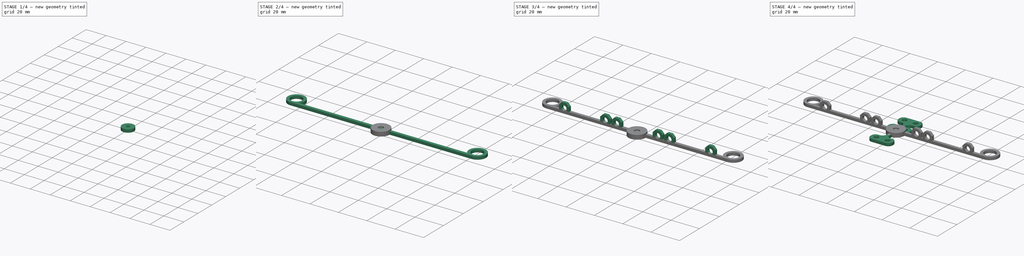
[diagram: build sequence overview — one tinted view per stage of 4, left to right]
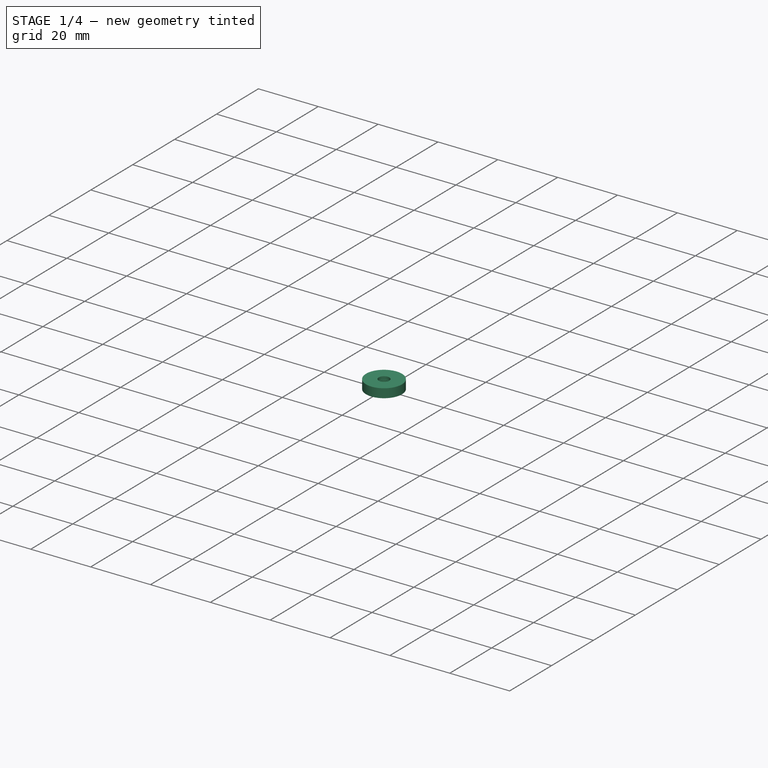
[diagram: stage 1 of 4 — iso view after this stage's code; geometry added in this stage tinted green]
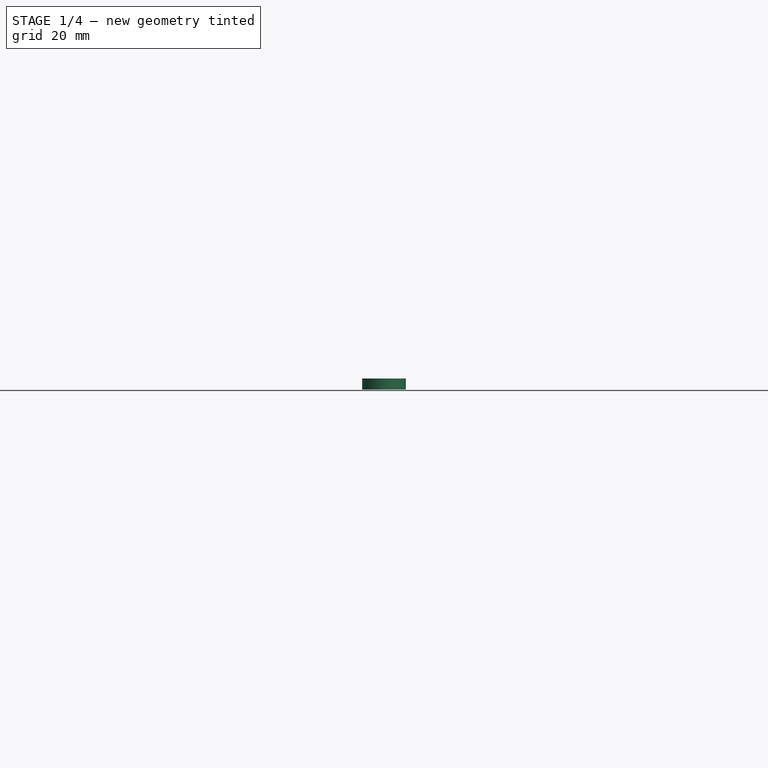
[diagram: stage 1 of 4 — front view after this stage's code; geometry added in this stage tinted green]
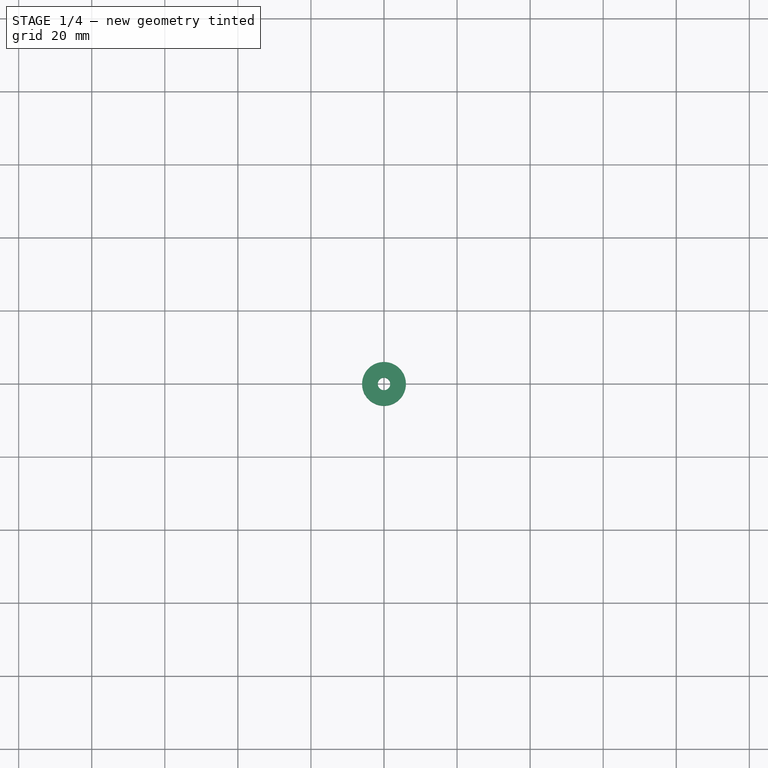
[diagram: stage 1 of 4 — top view after this stage's code; geometry added in this stage tinted green]
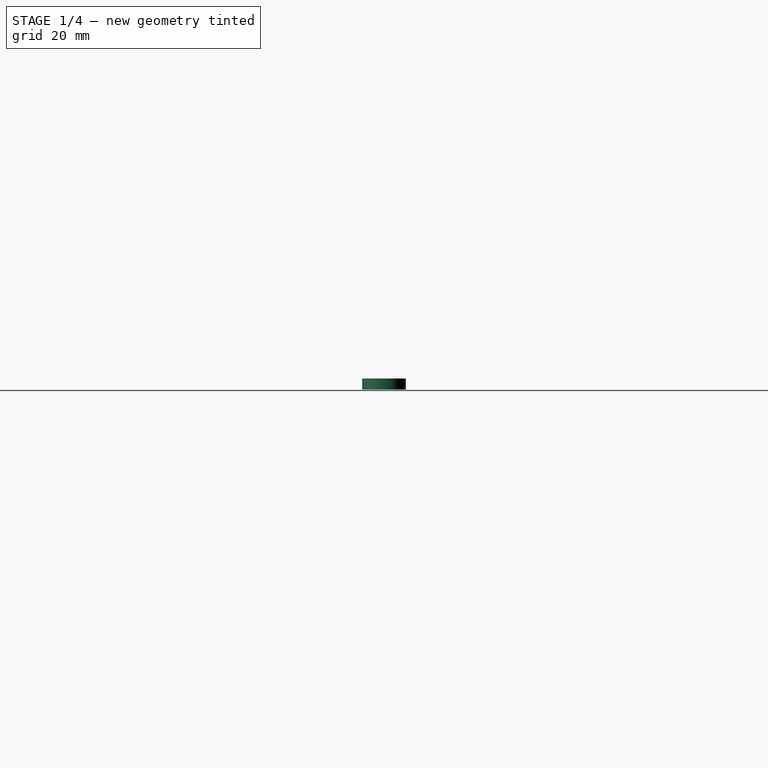
[diagram: stage 1 of 4 — right view after this stage's code; geometry added in this stage tinted green]
FCSTD DOCUMENT  (FreeCAD 1.1R38728 (Git))
Label: AuxPower1U Fan
License: All rights reserved
LicenseURL: https://en.wikipedia.org/wiki/All_rights_reserved
objects: Sketcher::SketchObject×8, PartDesign::Pad×6, PartDesign::Body×5, PartDesign::Pocket×2, PartDesign::Chamfer×1
note: 48 computed .brp shape members not serialized (recipe doc carries the construction recipe); baked Part::Feature solids carry a one-line shape summary decoded from their .brp

FEATURE [PartDesign::Body] Body003  label="BackBrace"
  AllowCompound = false
  Group = -> [Sketch006,Pad002,Sketch008,Pad003,Sketch009,Pocket,Chamfer]
  Origin = -> Origin003
  Placement = pos=(0,-20,0) rot=(0,0,1;0rad)
  Tip = -> Chamfer
FEATURE [Sketcher::SketchObject] Sketch010  label="BraceCapBossSketch"
  ArcFitTolerance = 1e-06
  AttachmentSupport = -> [XY_Plane004]
  FullyConstrained = true
  MakeInternals = false
  MapMode = 5
  sketch-geometry (2):
    g0: Circle CenterX=0 CenterY=0 CenterZ=0 NormalX=0 NormalY=0 NormalZ=1 AngleXU=0 Radius=6
    g1: Circle CenterX=0 CenterY=0 CenterZ=0 NormalX=0 NormalY=0 NormalZ=1 AngleXU=0 Radius=1.8
  constraints (4):
    c: Diameter(g0) = 12
    c: Coincident(g0,g-1)
    c: Diameter(g1) = 3.6
    c: Coincident(g1,g0)
FEATURE [PartDesign::Pad] Pad004  label="BraceCapBossPad"
  Direction = (0,0,1)
  Length = 3
  Length2 = 10
  Profile = -> Sketch010
  ReferenceAxis = -> Sketch010 [N_Axis]
  Refine = true
  Suppressed = false
  Type = 0
FEATURE [PartDesign::Body] Body004  label="BraceCap"
  AllowCompound = false
  Group = -> [Sketch010,Pad004,Sketch011,Pocket001]
  Origin = -> Origin004
  Placement = pos=(0,-30,0) rot=(0,0,1;0rad)
  Tip = -> Pocket001
FEATURE [Sketcher::SketchObject] Sketch012  label="SingleBraceSketch"
  ArcFitTolerance = 1e-06
  AttachmentSupport = -> [XY_Plane005]
  FullyConstrained = true
  MakeInternals = false
  MapMode = 5
  sketch-geometry (2):
    g0: Circle CenterX=0 CenterY=0 CenterZ=0 NormalX=0 NormalY=0 NormalZ=1 AngleXU=0 Radius=1.7
    g1: Circle CenterX=0 CenterY=0 CenterZ=0 NormalX=0 NormalY=0 NormalZ=1 AngleXU=0 Radius=3.5
  constraints (4):
    c: Diameter(g0) = 3.4
    c: Coincident(g0,g-1)
    c: Diameter(g1) = 7
    c: Coincident(g1,g0)
FEATURE [PartDesign::Pad] Pad005  label="SingleBracePad"
  Direction = (0,0,1)
  Length = 2
  Length2 = 10
  Profile = -> Sketch012
  ReferenceAxis = -> Sketch012 [N_Axis]
  Refine = true
  Suppressed = false
  Type = 0
FEATURE [PartDesign::Body] Body005  label="SingleBrace"
  AllowCompound = false
  Group = -> [Sketch012,Pad005]
  Origin = -> Origin005
  Placement = pos=(0,-50,0) rot=(0,0,1;0rad)
  Tip = -> Pad005
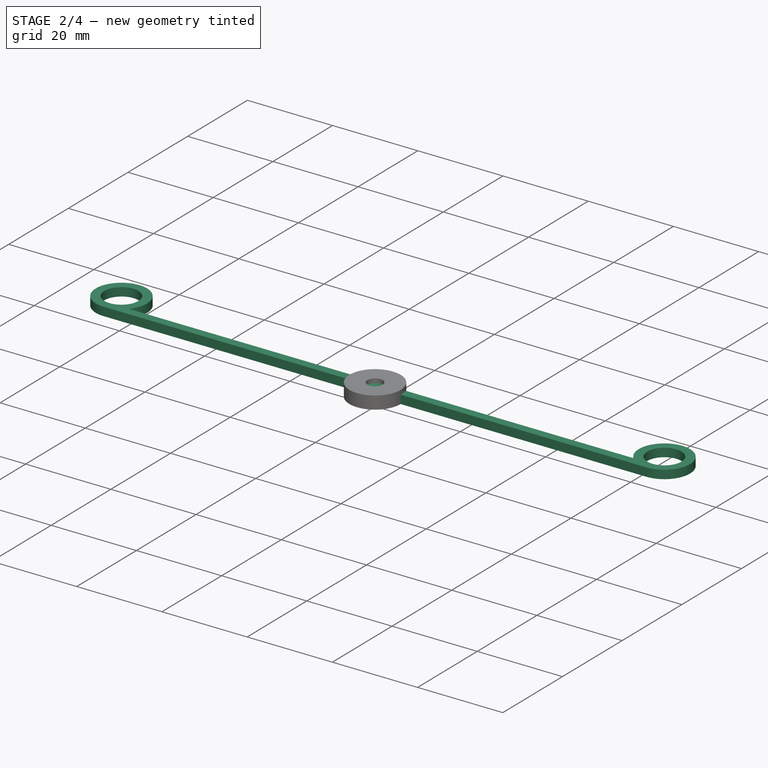
[diagram: stage 2 of 4 — iso view after this stage's code; geometry added in this stage tinted green]
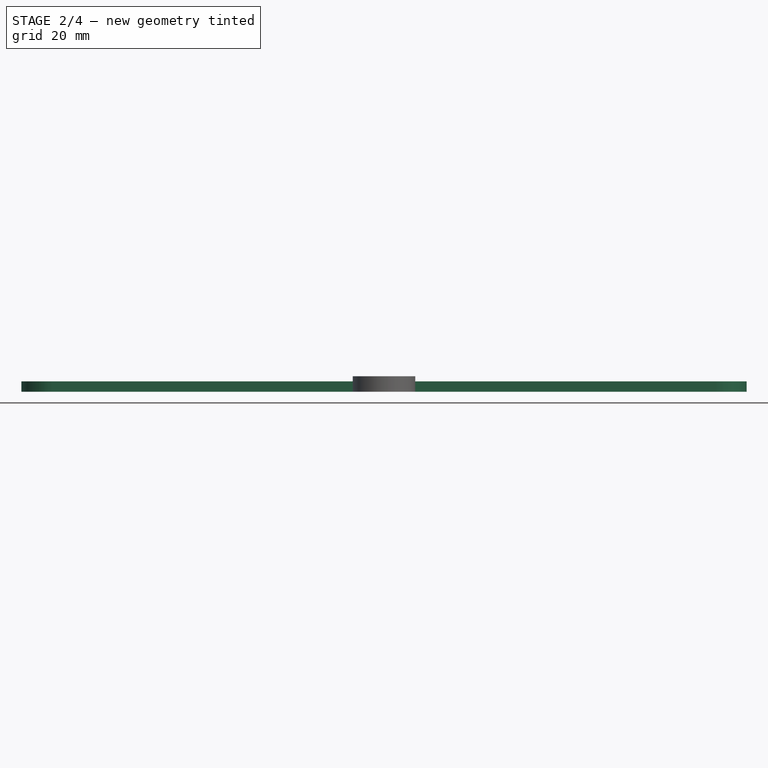
[diagram: stage 2 of 4 — front view after this stage's code; geometry added in this stage tinted green]
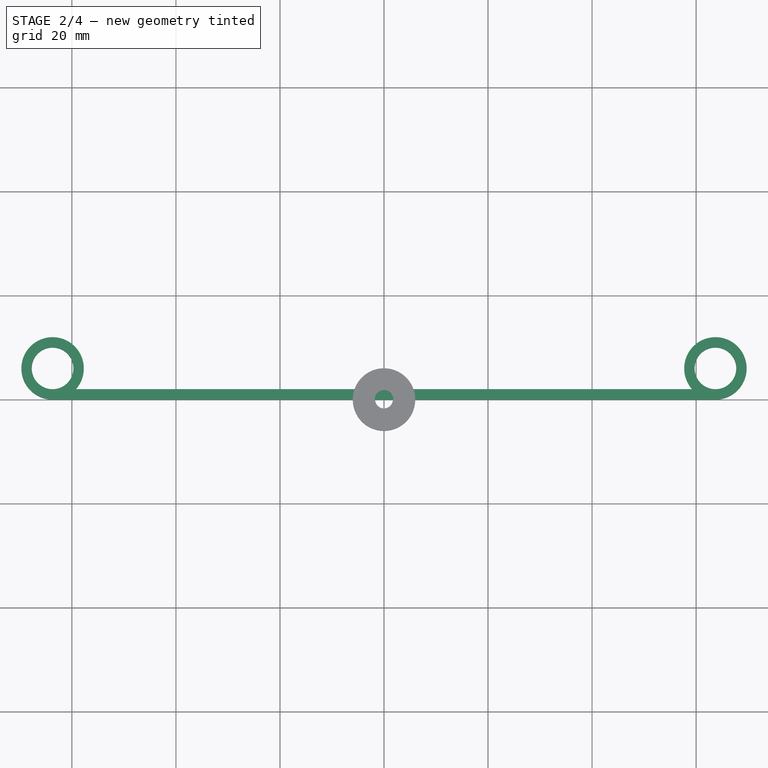
[diagram: stage 2 of 4 — top view after this stage's code; geometry added in this stage tinted green]
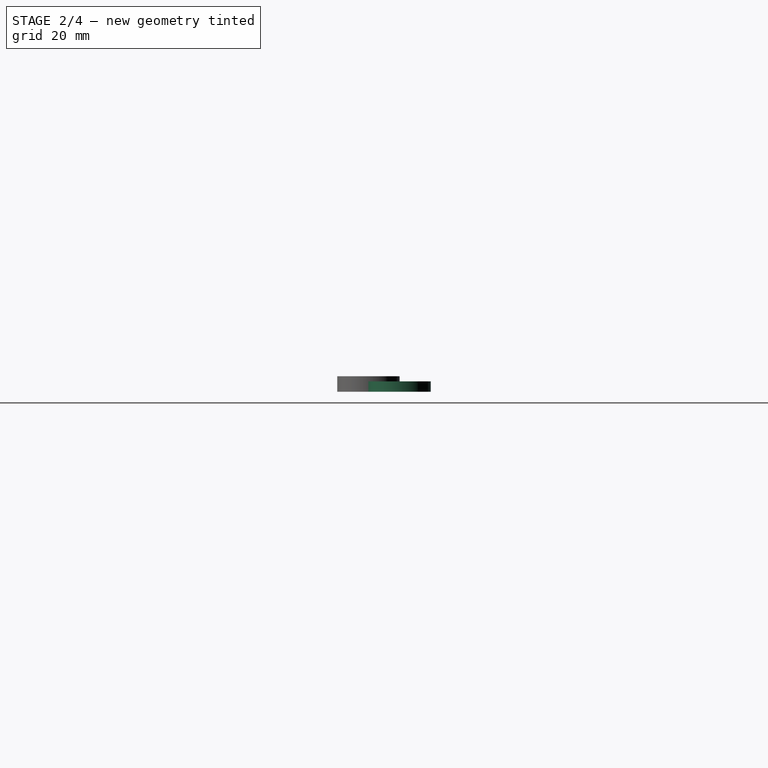
[diagram: stage 2 of 4 — right view after this stage's code; geometry added in this stage tinted green]
FEATURE [PartDesign::Body] Body001  label="ShortBrace"
  AllowCompound = false
  Group = -> [Sketch001,Pad001]
  Origin = -> Origin001
  Tip = -> Pad001
FEATURE [Sketcher::SketchObject] Sketch006  label="BackBraceBeamSketch"
  ArcFitTolerance = 1e-06
  AttachmentSupport = -> [XY_Plane003]
  FullyConstrained = true
  MakeInternals = false
  MapMode = 5
  sketch-geometry (9):
    g0: LineSegment [constr] StartX=0 StartY=0 StartZ=0 EndX=0 EndY=6 EndZ=0
    g1: LineSegment [constr] StartX=-63.7159 StartY=6 StartZ=0 EndX=-63.7159 EndY=0 EndZ=0
    g2: ArcOfCircle CenterX=-63.7159 CenterY=6 CenterZ=0 NormalX=0 NormalY=0 NormalZ=1 AngleXU=0 Radius=6 StartAngle=5.55346 EndAngle=10.9956
    g3: LineSegment [constr] StartX=63.7159 StartY=6 StartZ=0 EndX=63.7159 EndY=0 EndZ=0
    g4: ArcOfCircle CenterX=63.7159 CenterY=6 CenterZ=0 NormalX=0 NormalY=0 NormalZ=1 AngleXU=0 Radius=6 StartAngle=4.71239 EndAngle=10.1545
    g5: LineSegment StartX=-63.7159 StartY=0 StartZ=0 EndX=63.7159 EndY=0 EndZ=0
    g6: LineSegment StartX=59.2438 StartY=2 StartZ=0 EndX=-59.2438 EndY=2 EndZ=0
    g7: Circle CenterX=-63.7159 CenterY=6 CenterZ=0 NormalX=0 NormalY=0 NormalZ=1 AngleXU=0 Radius=4
    g8: Circle CenterX=63.7159 CenterY=6 CenterZ=0 NormalX=0 NormalY=0 NormalZ=1 AngleXU=0 Radius=4
  constraints (26):
    c: Distance(g0) = 6
    c: Coincident(g0,g-1)
    c: PointOnObject(g0,g-2)
    c: Symmetric(g3,g1,g0)
    c: DistanceX(g1,g3) = 127.432
    c: Vertical(g1)
    c: Horizontal(g1,g0)
    c: Coincident(g2,g1)
    c: Vertical(g3)
    c: Coincident(g4,g3)
    c: Horizontal(g4,g3)
    c: Coincident(g5,g1)
    c: Coincident(g5,g3)
    c: Diameter(g7) = 8
    c: Coincident(g8,g4)
    c: Horizontal(g6,g2)
    c: DistanceY(g1,g6) = 2
    c: Vertical(g6,g2)
    c: Horizontal(g6)
    c: Coincident(g6,g4)
    c: Horizontal(g5)
    c: Equal(g8,g7)
    c: Equal(g2,g4)
    c: Vertical(g4,g3)
    c: Coincident(g1,g7)
    c: Coincident(g1,g2)
FEATURE [PartDesign::Pad] Pad002  label="BackBraceBeamPad"
  Direction = (0,0,1)
  Length = 2
  Length2 = 10
  Profile = -> Sketch006
  ReferenceAxis = -> Sketch006 [N_Axis]
  Refine = true
  Suppressed = false
  Type = 0
FEATURE [Sketcher::SketchObject] Sketch011  label="BraceCapBossHoleSketch"
  ArcFitTolerance = 1e-06
  AttachmentSupport = -> [XY_Plane004]
  FullyConstrained = true
  MakeInternals = false
  MapMode = 5
  sketch-geometry (1):
    g0: Circle CenterX=0 CenterY=0 CenterZ=0 NormalX=0 NormalY=0 NormalZ=1 AngleXU=0 Radius=4
  constraints (2):
    c: Diameter(g0) = 8
    c: Coincident(g0,g-1)
FEATURE [PartDesign::Pocket] Pocket001  label="BraceCapBossHolePocket"
  BaseFeature = -> Pad004
  Direction = (0,0,-1)
  Length = 2
  Length2 = 5
  Profile = -> Sketch011
  ReferenceAxis = -> Sketch011 [N_Axis]
  Refine = true
  Reversed = true
  Suppressed = false
  Type = 0
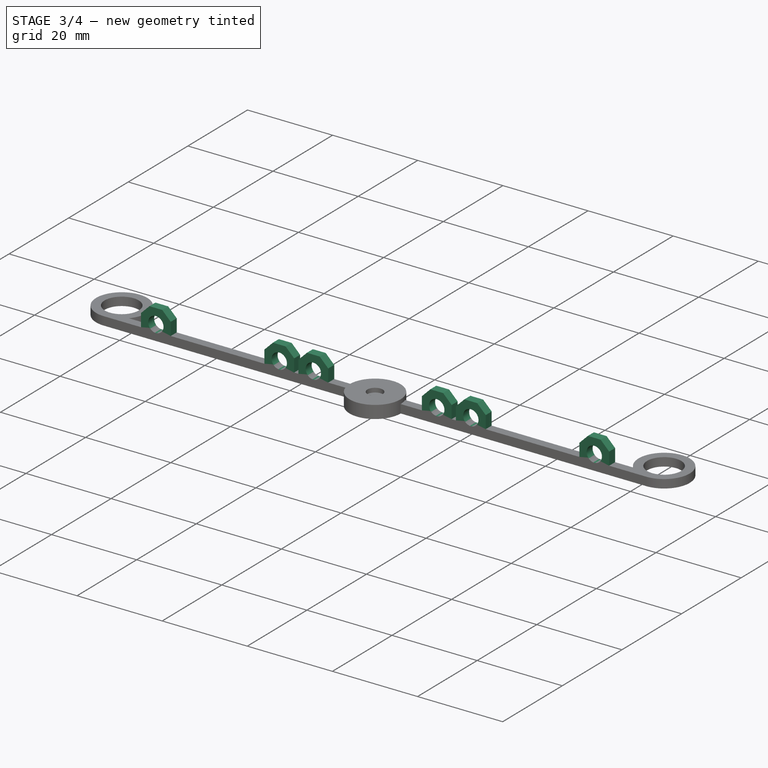
[diagram: stage 3 of 4 — iso view after this stage's code; geometry added in this stage tinted green]
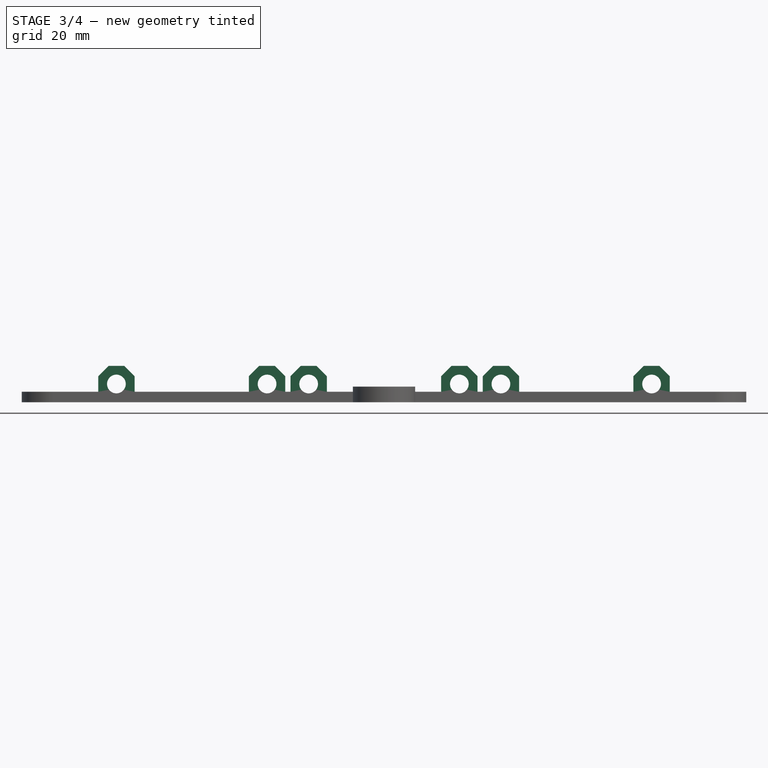
[diagram: stage 3 of 4 — front view after this stage's code; geometry added in this stage tinted green]
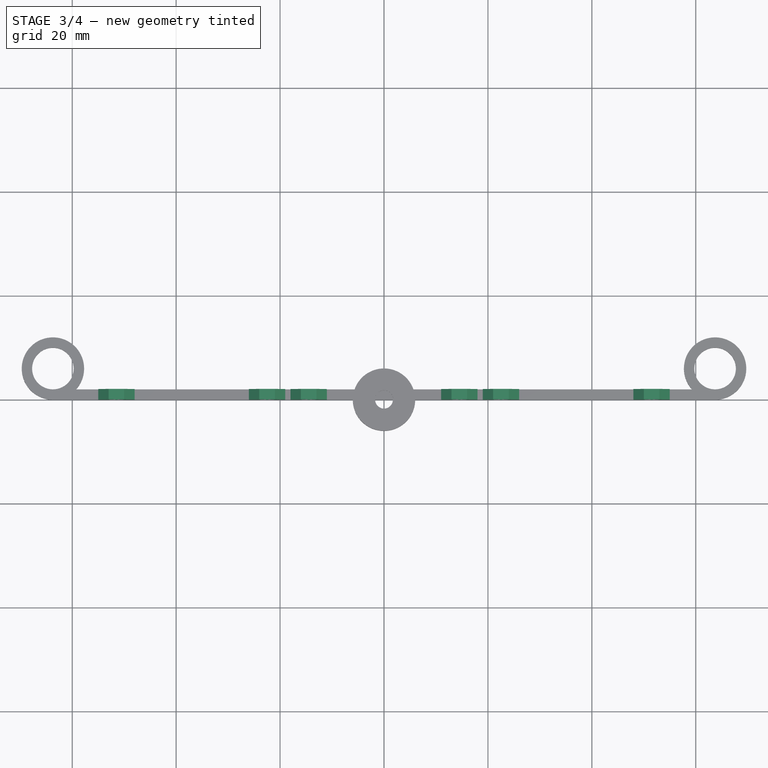
[diagram: stage 3 of 4 — top view after this stage's code; geometry added in this stage tinted green]
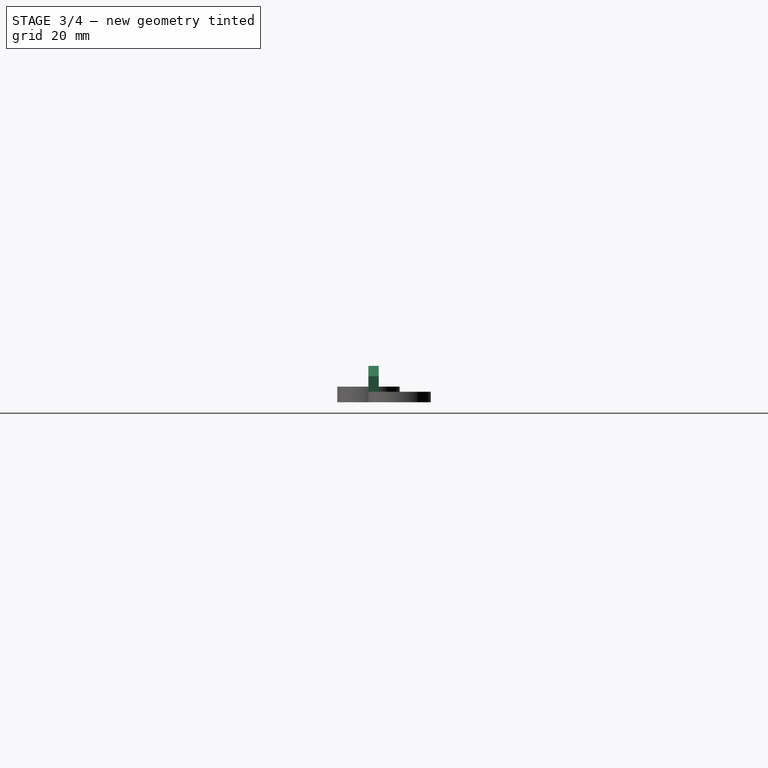
[diagram: stage 3 of 4 — right view after this stage's code; geometry added in this stage tinted green]
FEATURE [Sketcher::SketchObject] Sketch008  label="BackBraceWingSketch"
  ArcFitTolerance = 1e-06
  AttachmentSupport = -> [XY_Plane003]
  FullyConstrained = false
  MakeInternals = false
  MapMode = 5
  sketch-geometry (49):
    g0: LineSegment [constr] StartX=-14.5 StartY=1 StartZ=0 EndX=14.5 EndY=1 EndZ=0
    g1: LineSegment StartX=-18 StartY=2 StartZ=0 EndX=-18 EndY=-1.73e-14 EndZ=0
    g2: LineSegment StartX=-18 StartY=-1.73e-14 StartZ=0 EndX=-11 EndY=-1.73e-14 EndZ=0
    g3: LineSegment StartX=-11 StartY=-1.73e-14 StartZ=0 EndX=-11 EndY=2 EndZ=0
    g4: LineSegment StartX=-11 StartY=2 StartZ=0 EndX=-18 EndY=2 EndZ=0
    g5: LineSegment [constr] StartX=-11 StartY=2 StartZ=0 EndX=-14.5 EndY=1 EndZ=0
    g6: LineSegment [constr] StartX=-11 StartY=-1.73e-14 StartZ=0 EndX=-14.5 EndY=1 EndZ=0
    g7: LineSegment [constr] StartX=-14.5 StartY=1 StartZ=0 EndX=-18 EndY=2 EndZ=0
    g8: LineSegment StartX=11 StartY=2 StartZ=0 EndX=11 EndY=-1.73e-14 EndZ=0
    g9: LineSegment StartX=11 StartY=-1.73e-14 StartZ=0 EndX=18 EndY=-1.73e-14 EndZ=0
    g10: LineSegment StartX=18 StartY=-1.73e-14 StartZ=0 EndX=18 EndY=2 EndZ=0
    g11: LineSegment StartX=18 StartY=2 StartZ=0 EndX=11 EndY=2 EndZ=0
    g12: LineSegment [constr] StartX=18 StartY=2 StartZ=0 EndX=14.5 EndY=1 EndZ=0
    g13: LineSegment [constr] StartX=14.5 StartY=1 StartZ=0 EndX=11 EndY=-1.72e-14 EndZ=0
    g14: LineSegment [constr] StartX=14.5 StartY=1 StartZ=0 EndX=11 EndY=2 EndZ=0
    g15: LineSegment StartX=19 StartY=2 StartZ=0 EndX=19 EndY=-1.64e-14 EndZ=0
    g16: LineSegment StartX=19 StartY=-1.64e-14 StartZ=0 EndX=26 EndY=-1.64e-14 EndZ=0
    g17: LineSegment StartX=26 StartY=-1.64e-14 StartZ=0 EndX=26 EndY=2 EndZ=0
    g18: LineSegment StartX=26 StartY=2 StartZ=0 EndX=19 EndY=2 EndZ=0
    g19: LineSegment StartX=-19 StartY=2 StartZ=0 EndX=-26 EndY=2 EndZ=0
    g20: LineSegment StartX=-26 StartY=2 StartZ=0 EndX=-26 EndY=-2.07e-14 EndZ=0
    g21: LineSegment StartX=-26 StartY=-2.07e-14 StartZ=0 EndX=-19 EndY=-2.07e-14 EndZ=0
    g22: LineSegment StartX=-19 StartY=-2.07e-14 StartZ=0 EndX=-19 EndY=2 EndZ=0
    g23: LineSegment StartX=-48 StartY=2 StartZ=0 EndX=-55 EndY=2 EndZ=0
    g24: LineSegment StartX=-55 StartY=2 StartZ=0 EndX=-55 EndY=-1.93e-14 EndZ=0
    g25: LineSegment StartX=-55 StartY=-1.93e-14 StartZ=0 EndX=-48 EndY=-1.93e-14 EndZ=0
    g26: LineSegment StartX=-48 StartY=-1.93e-14 StartZ=0 EndX=-48 EndY=2 EndZ=0
    g27: LineSegment StartX=48 StartY=2 StartZ=0 EndX=48 EndY=-1.71e-14 EndZ=0
    g28: LineSegment StartX=48 StartY=-1.71e-14 StartZ=0 EndX=55 EndY=-1.71e-14 EndZ=0
    g29: LineSegment StartX=55 StartY=-1.71e-14 StartZ=0 EndX=55 EndY=2 EndZ=0
    g30: LineSegment StartX=55 StartY=2 StartZ=0 EndX=48 EndY=2 EndZ=0
    g31: LineSegment [constr] StartX=19 StartY=2 StartZ=0 EndX=22.5 EndY=1 EndZ=0
    g32: LineSegment [constr] StartX=22.5 StartY=1 StartZ=0 EndX=26 EndY=2 EndZ=0
    g33: LineSegment [constr] StartX=26 StartY=-1.64e-14 StartZ=0 EndX=22.5 EndY=1 EndZ=0
    g34: LineSegment [constr] StartX=14.5 StartY=1 StartZ=0 EndX=22.5 EndY=1 EndZ=0
    g35: LineSegment [constr] StartX=48 StartY=2 StartZ=0 EndX=51.5 EndY=1 EndZ=0
    g36: LineSegment [constr] StartX=51.5 StartY=1 StartZ=0 EndX=48 EndY=-1.72e-14 EndZ=0
    g37: LineSegment [constr] StartX=51.5 StartY=1 StartZ=0 EndX=55 EndY=2 EndZ=0
    g38: LineSegment [constr] StartX=22.5 StartY=1 StartZ=0 EndX=51.5 EndY=1 EndZ=0
    g39: LineSegment [constr] StartX=-14.5 StartY=1 StartZ=0 EndX=-22.5 EndY=1 EndZ=0
    g40: LineSegment [constr] StartX=-26 StartY=2 StartZ=0 EndX=-22.5 EndY=1 EndZ=0
    g41: LineSegment [constr] StartX=-22.5 StartY=1 StartZ=0 EndX=-19 EndY=2 EndZ=0
    g42: LineSegment [constr] StartX=-22.5 StartY=1 StartZ=0 EndX=-26 EndY=-2.07e-14 EndZ=0
    g43: LineSegment [constr] StartX=-48 StartY=2 StartZ=0 EndX=-51.5 EndY=1 EndZ=0
    g44: LineSegment [constr] StartX=-51.5 StartY=1 StartZ=0 EndX=-48 EndY=-1.93e-14 EndZ=0
    g45: LineSegment [constr] StartX=-51.5 StartY=1 StartZ=0 EndX=-55 EndY=2 EndZ=0
    g46: LineSegment [constr] StartX=-22.5 StartY=1 StartZ=0 EndX=-51.5 EndY=1 EndZ=0
    g47: LineSegment [constr] StartX=-57.7159 StartY=2 StartZ=0 EndX=-57.7159 EndY=1 EndZ=0
    g48: LineSegment [constr] StartX=-57.7159 StartY=1 StartZ=0 EndX=-57.7159 EndY=0 EndZ=0
  constraints (128):
    c: DistanceX(g0,g0) = 29
    c: Symmetric(g0,g0,g-2)
    c: Coincident(g1,g2)
    c: Coincident(g2,g3)
    c: Coincident(g3,g4)
    c: Coincident(g4,g1)
    c: Vertical(g1)
    c: Vertical(g3)
    c: Horizontal(g2)
    c: Horizontal(g4)
    c: Coincident(g5,g3)
    c: Coincident(g6,g2)
    c: Coincident(g6,g5)
    c: Coincident(g7,g5)
    c: Coincident(g7,g1)
    c: Equal(g7,g5)
    c: Equal(g5,g6)
    c: Coincident(g0,g5)
    c: DistanceY(g1,g1) = 2
    c: DistanceX(g2,g2) = 7
    c: Coincident(g8,g9)
    c: Coincident(g9,g10)
    c: Coincident(g10,g11)
    c: Coincident(g11,g8)
    c: Vertical(g8)
    c: Vertical(g10)
    c: Horizontal(g9)
    c: Horizontal(g11)
    c: Coincident(g12,g10)
    c: Coincident(g13,g12)
    c: Coincident(g13,g8)
    c: Coincident(g14,g12)
    c: Coincident(g14,g8)
    c: Equal(g13,g14)
    c: Equal(g14,g12)
    c: Equal(g11,g4)
    c: Equal(g8,g1)
    c: Coincident(g12,g0)
    c: Coincident(g15,g16)
    c: Coincident(g16,g17)
    c: Coincident(g17,g18)
    c: Coincident(g18,g15)
    c: Vertical(g15)
    c: Vertical(g17)
    c: Horizontal(g16)
    c: Horizontal(g18)
    c: Coincident(g19,g20)
    c: Coincident(g20,g21)
    c: Coincident(g21,g22)
    c: Coincident(g22,g19)
    c: Horizontal(g19)
    c: Horizontal(g21)
    c: Vertical(g20)
    c: Vertical(g22)
    c: Coincident(g23,g24)
    c: Coincident(g24,g25)
    c: Coincident(g25,g26)
    c: Coincident(g26,g23)
    c: Horizontal(g23)
    c: Horizontal(g25)
    c: Vertical(g24)
    c: Vertical(g26)
    c: Coincident(g27,g28)
    c: Coincident(g28,g29)
    c: Coincident(g29,g30)
    c: Coincident(g30,g27)
    c: Vertical(g27)
    c: Vertical(g29)
    c: Horizontal(g28)
    c: Horizontal(g30)
    c: Coincident(g31,g15)
    c: Coincident(g32,g31)
    c: Coincident(g32,g17)
    c: Coincident(g33,g16)
    c: Coincident(g33,g31)
    c: Equal(g32,g33)
    c: Equal(g33,g31)
    c: Equal(g18,g11)
    c: Equal(g15,g10)
    c: Equal(g27,g17)
    c: Equal(g18,g30)
    c: Distance(g34) = 8
    c: Coincident(g34,g0)
    c: Horizontal(g34)
    c: Coincident(g31,g34)
    c: Coincident(g35,g27)
    c: Coincident(g36,g35)
    c: Coincident(g36,g27)
    c: Coincident(g37,g35)
    c: Coincident(g37,g29)
    c: Equal(g35,g36)
    c: Equal(g36,g37)
    c: Coincident(g38,g31)
    c: Horizontal(g38)
    c: Equal(g0,g38)
    c: Coincident(g35,g38)
    c: Equal(g19,g4)
    c: Equal(g22,g1)
    c: Equal(g26,g20)
    c: Equal(g19,g23)
    c: Coincident(g39,g0)
    c: Horizontal(g39)
    c: Equal(g39,g34)
    c: Coincident(g40,g19)
    c: Coincident(g41,g40)
    c: Coincident(g41,g19)
    c: Coincident(g42,g40)
    c: Coincident(g42,g20)
    c: Equal(g40,g42)
    c: Equal(g42,g41)
    c: Coincident(g40,g39)
    c: Coincident(g43,g23)
    c: Coincident(g44,g43)
    c: Coincident(g44,g25)
    c: Coincident(g45,g43)
    c: Coincident(g45,g23)
    c: Equal(g43,g45)
    c: Equal(g45,g44)
    c: Coincident(g46,g39)
    c: Horizontal(g46)
    c: Equal(g46,g0)
    c: Vertical(g47)
    c: Coincident(g48,g47)
    c: Vertical(g48)
    c: Horizontal(g48,g-1)
    c: Equal(g48,g47)
    c: Horizontal(g46,g47)
    c: Coincident(g43,g46)
FEATURE [PartDesign::Pad] Pad003  label="BackBraceWingPad"
  BaseFeature = -> Pad002
  Direction = (0,0,1)
  Length = 7
  Length2 = 10
  Profile = -> Sketch008
  ReferenceAxis = -> Sketch008 [N_Axis]
  Refine = true
  Suppressed = false
  Type = 0
FEATURE [Sketcher::SketchObject] Sketch009  label="BackBraceWingHoleSketch"
  ArcFitTolerance = 1e-06
  AttachmentSupport = -> [XZ_Plane003]
  ExternalGeometry = -> [Pad003]
  FullyConstrained = true
  MakeInternals = false
  MapMode = 5
  Placement = pos=(0,0,0) rot=(1,0,0;1.5708rad)
  sketch-geometry (48):
    g0: LineSegment [constr] StartX=55 StartY=7 StartZ=0 EndX=48 EndY=7 EndZ=0
    g1: LineSegment [constr] StartX=48 StartY=7 StartZ=0 EndX=48 EndY=-9e-16 EndZ=0
    g2: LineSegment [constr] StartX=48 StartY=-9e-16 StartZ=0 EndX=55 EndY=-9e-16 EndZ=0
    g3: LineSegment [constr] StartX=55 StartY=-9e-16 StartZ=0 EndX=55 EndY=7 EndZ=0
    g4: LineSegment [constr] StartX=19 StartY=7 StartZ=0 EndX=19 EndY=0 EndZ=0
    g5: LineSegment [constr] StartX=19 StartY=0 StartZ=0 EndX=26 EndY=0 EndZ=0
    g6: LineSegment [constr] StartX=26 StartY=0 StartZ=0 EndX=26 EndY=7 EndZ=0
    g7: LineSegment [constr] StartX=26 StartY=7 StartZ=0 EndX=19 EndY=7 EndZ=0
    g8: LineSegment [constr] StartX=18 StartY=7 StartZ=0 EndX=11 EndY=7 EndZ=0
    g9: LineSegment [constr] StartX=11 StartY=7 StartZ=0 EndX=11 EndY=0 EndZ=0
    g10: LineSegment [constr] StartX=11 StartY=0 StartZ=0 EndX=18 EndY=0 EndZ=0
    g11: LineSegment [constr] StartX=18 StartY=0 StartZ=0 EndX=18 EndY=7 EndZ=0
    g12: LineSegment [constr] StartX=-18 StartY=7 StartZ=0 EndX=-18 EndY=0 EndZ=0
    g13: LineSegment [constr] StartX=-18 StartY=2e-16 StartZ=0 EndX=-11 EndY=2e-16 EndZ=0
    g14: LineSegment [constr] StartX=-11 StartY=2e-16 StartZ=0 EndX=-11 EndY=7 EndZ=0
    g15: LineSegment [constr] StartX=-11 StartY=7 StartZ=0 EndX=-18 EndY=7 EndZ=0
    g16: LineSegment [constr] StartX=-19 StartY=7 StartZ=0 EndX=-26 EndY=7 EndZ=0
    g17: LineSegment [constr] StartX=-26 StartY=7 StartZ=0 EndX=-26 EndY=0 EndZ=0
    g18: LineSegment [constr] StartX=-26 StartY=0 StartZ=0 EndX=-19 EndY=0 EndZ=0
    g19: LineSegment [constr] StartX=-19 StartY=0 StartZ=0 EndX=-19 EndY=7 EndZ=0
    g20: LineSegment [constr] StartX=-55 StartY=7 StartZ=0 EndX=-55 EndY=0 EndZ=0
    g21: LineSegment [constr] StartX=-55 StartY=-4e-16 StartZ=0 EndX=-48 EndY=-4e-16 EndZ=0
    g22: LineSegment [constr] StartX=-48 StartY=-4e-16 StartZ=0 EndX=-48 EndY=7 EndZ=0
    g23: LineSegment [constr] StartX=-48 StartY=7 StartZ=0 EndX=-55 EndY=7 EndZ=0
    g24: LineSegment [constr] StartX=-55 StartY=7 StartZ=0 EndX=-51.5 EndY=3.5 EndZ=0
    g25: LineSegment [constr] StartX=-48 StartY=7 StartZ=0 EndX=-51.5 EndY=3.5 EndZ=0
    g26: LineSegment [constr] StartX=-51.5 StartY=3.5 StartZ=0 EndX=-48 EndY=-4e-16 EndZ=0
    g27: LineSegment [constr] StartX=-26 StartY=7 StartZ=0 EndX=-22.5 EndY=3.5 EndZ=0
    g28: LineSegment [constr] StartX=-22.5 StartY=3.5 StartZ=0 EndX=-26 EndY=0 EndZ=0
    g29: LineSegment [constr] StartX=-22.5 StartY=3.5 StartZ=0 EndX=-19 EndY=7 EndZ=0
    g30: LineSegment [constr] StartX=-18 StartY=7 StartZ=0 EndX=-14.5 EndY=3.5 EndZ=0
    g31: LineSegment [constr] StartX=-14.5 StartY=3.5 StartZ=0 EndX=-11 EndY=7 EndZ=0
    g32: LineSegment [constr] StartX=-11 StartY=2e-16 StartZ=0 EndX=-14.5 EndY=3.5 EndZ=0
    g33: LineSegment [constr] StartX=11 StartY=7 StartZ=0 EndX=14.5 EndY=3.5 EndZ=0
    g34: LineSegment [constr] StartX=14.5 StartY=3.5 StartZ=0 EndX=18 EndY=7 EndZ=0
    g35: LineSegment [constr] StartX=14.5 StartY=3.5 StartZ=0 EndX=11 EndY=0 EndZ=0
    g36: LineSegment [constr] StartX=19 StartY=7 StartZ=0 EndX=22.5 EndY=3.5 EndZ=0
    g37: LineSegment [constr] StartX=22.5 StartY=3.5 StartZ=0 EndX=26 EndY=7 EndZ=0
    g38: LineSegment [constr] StartX=26 StartY=0 StartZ=0 EndX=22.5 EndY=3.5 EndZ=0
    g39: LineSegment [constr] StartX=48 StartY=7 StartZ=0 EndX=51.5 EndY=3.5 EndZ=0
    g40: LineSegment [constr] StartX=51.5 StartY=3.5 StartZ=0 EndX=48 EndY=-9e-16 EndZ=0
    g41: LineSegment [constr] StartX=55 StartY=7 StartZ=0 EndX=51.5 EndY=3.5 EndZ=0
    g42: Circle CenterX=51.5 CenterY=3.5 CenterZ=0 NormalX=0 NormalY=0 NormalZ=1 AngleXU=0 Radius=1.8
    g43: Circle CenterX=22.5 CenterY=3.5 CenterZ=0 NormalX=0 NormalY=0 NormalZ=1 AngleXU=0 Radius=1.8
    g44: Circle CenterX=14.5 CenterY=3.5 CenterZ=0 NormalX=0 NormalY=0 NormalZ=1 AngleXU=0 Radius=1.8
    g45: Circle CenterX=-14.5 CenterY=3.5 CenterZ=0 NormalX=0 NormalY=0 NormalZ=1 AngleXU=0 Radius=1.8
    g46: Circle CenterX=-22.5 CenterY=3.5 CenterZ=0 NormalX=0 NormalY=0 NormalZ=1 AngleXU=0 Radius=1.8
    g47: Circle CenterX=-51.5 CenterY=3.5 CenterZ=0 NormalX=0 NormalY=0 NormalZ=1 AngleXU=0 Radius=1.8
  constraints (120):
    c: Coincident(g0,g1)
    c: Coincident(g1,g2)
    c: Coincident(g2,g3)
    c: Coincident(g3,g0)
    c: Horizontal(g0)
    c: Horizontal(g2)
    c: Vertical(g1)
    c: Vertical(g3)
    c: Coincident(g0,g-8)
    c: Vertical(g0,g-8)
    c: Equal(g1,g2)
    c: Coincident(g4,g5)
    c: Coincident(g5,g6)
    c: Coincident(g6,g7)
    c: Coincident(g7,g4)
    c: Vertical(g4)
    c: Vertical(g6)
    c: Horizontal(g5)
    c: Horizontal(g7)
    c: Coincident(g4,g-7)
    c: Vertical(g6,g-7)
    c: Equal(g5,g6)
    c: Coincident(g8,g9)
    c: Coincident(g9,g10)
    c: Coincident(g10,g11)
    c: Coincident(g11,g8)
    c: Horizontal(g8)
    c: Horizontal(g10)
    c: Vertical(g9)
    c: Vertical(g11)
    c: Coincident(g8,g-6)
    c: Vertical(g-6,g8)
    c: Equal(g9,g10)
    c: Coincident(g12,g13)
    c: Coincident(g13,g14)
    c: Coincident(g14,g15)
    c: Coincident(g15,g12)
    c: Vertical(g12)
    c: Vertical(g14)
    c: Horizontal(g13)
    c: Horizontal(g15)
    c: Coincident(g12,g-5)
    c: Coincident(g16,g17)
    c: Coincident(g17,g18)
    c: Coincident(g18,g19)
    c: Coincident(g19,g16)
    c: Horizontal(g16)
    c: Horizontal(g18)
    c: Vertical(g17)
    c: Vertical(g19)
    c: Coincident(g16,g-4)
    c: Vertical(g-4,g16)
    c: Vertical(g-5,g14)
    c: Equal(g14,g13)
    c: Equal(g19,g18)
    c: Coincident(g20,g21)
    c: Coincident(g21,g22)
    c: Coincident(g22,g23)
    c: Coincident(g23,g20)
    c: Vertical(g20)
    c: Vertical(g22)
    c: Horizontal(g21)
    c: Horizontal(g23)
    c: Coincident(g20,g-3)
    c: Vertical(g-3,g22)
    c: Equal(g22,g21)
    c: Coincident(g24,g20)
    c: Coincident(g25,g22)
    c: Coincident(g25,g24)
    c: Coincident(g26,g24)
    c: Coincident(g26,g21)
    c: Equal(g24,g25)
    c: Equal(g25,g26)
    c: Coincident(g27,g16)
    c: Coincident(g28,g27)
    c: Coincident(g28,g17)
    c: Coincident(g29,g27)
    c: Coincident(g29,g16)
    c: Equal(g29,g27)
    c: Equal(g27,g28)
    c: Coincident(g30,g12)
    c: Coincident(g31,g30)
    c: Coincident(g31,g14)
    c: Coincident(g32,g13)
    c: Coincident(g32,g30)
    c: Equal(g32,g31)
    c: Equal(g31,g30)
    c: Coincident(g33,g8)
    c: Coincident(g34,g33)
    c: Coincident(g34,g8)
    c: Coincident(g35,g33)
    c: Coincident(g35,g9)
    c: Equal(g35,g33)
    c: Equal(g33,g34)
    c: Coincident(g36,g4)
    c: Coincident(g37,g36)
    c: Coincident(g37,g6)
    c: Coincident(g38,g5)
    c: Coincident(g38,g36)
    c: Equal(g38,g37)
    c: Equal(g37,g36)
    c: Coincident(g39,g0)
    c: Coincident(g40,g39)
    c: Coincident(g40,g1)
    c: Coincident(g41,g0)
    c: Coincident(g41,g39)
    c: Equal(g41,g39)
    c: Equal(g39,g40)
    c: Diameter(g42) = 3.6
    c: Coincident(g42,g39)
    c: Coincident(g43,g36)
    c: Coincident(g44,g33)
    c: Equal(g43,g44)
    c: Equal(g44,g42)
    c: Coincident(g45,g30)
    c: Coincident(g46,g27)
    c: Equal(g44,g45)
    c: Equal(g45,g46)
    c: Coincident(g47,g24)
    c: Equal(g47,g46)
FEATURE [PartDesign::Pocket] Pocket  label="BackBraceWingHolePocket"
  BaseFeature = -> Pad003
  Direction = (0,1,-2e-16)
  Length = 3.6
  Length2 = 5
  Profile = -> Sketch009
  ReferenceAxis = -> Sketch009 [N_Axis]
  Refine = true
  Suppressed = false
  Type = 0
FEATURE [PartDesign::Chamfer] Chamfer
  Angle = 45
  Base = -> Pocket [Edge77,Edge80,Edge86,Edge88,Edge94,Edge96,Edge99,Edge97,Edge91,Edge89,Edge83,Edge81]
  BaseFeature = -> Pocket
  ChamferType = 0
  FlipDirection = false
  Refine = true
  Size = 2
  Size2 = 1
  SupportTransform = false
  Suppressed = false
  UseAllEdges = false
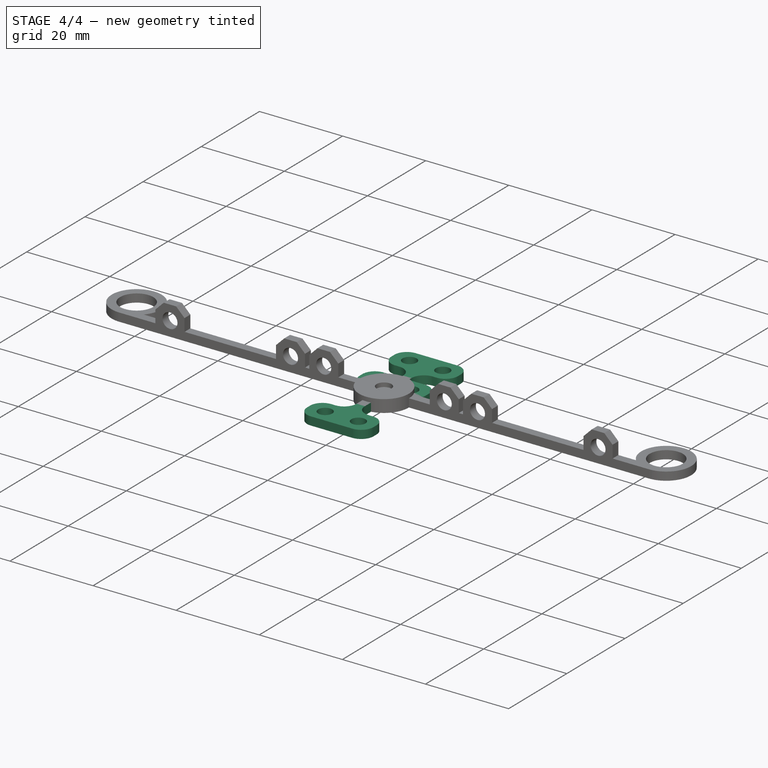
[diagram: stage 4 of 4 — iso view after this stage's code; geometry added in this stage tinted green]
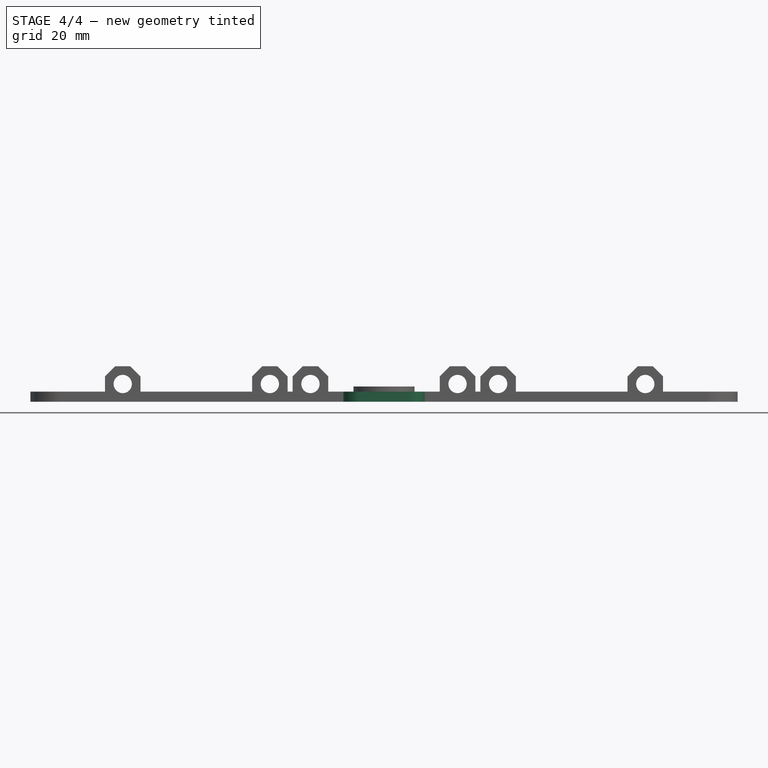
[diagram: stage 4 of 4 — front view after this stage's code; geometry added in this stage tinted green]
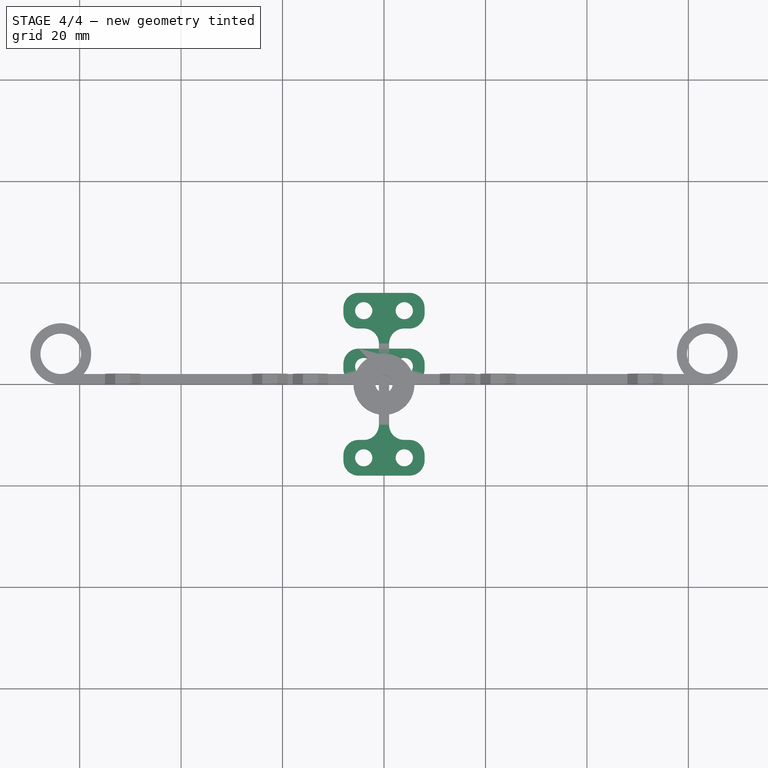
[diagram: stage 4 of 4 — top view after this stage's code; geometry added in this stage tinted green]
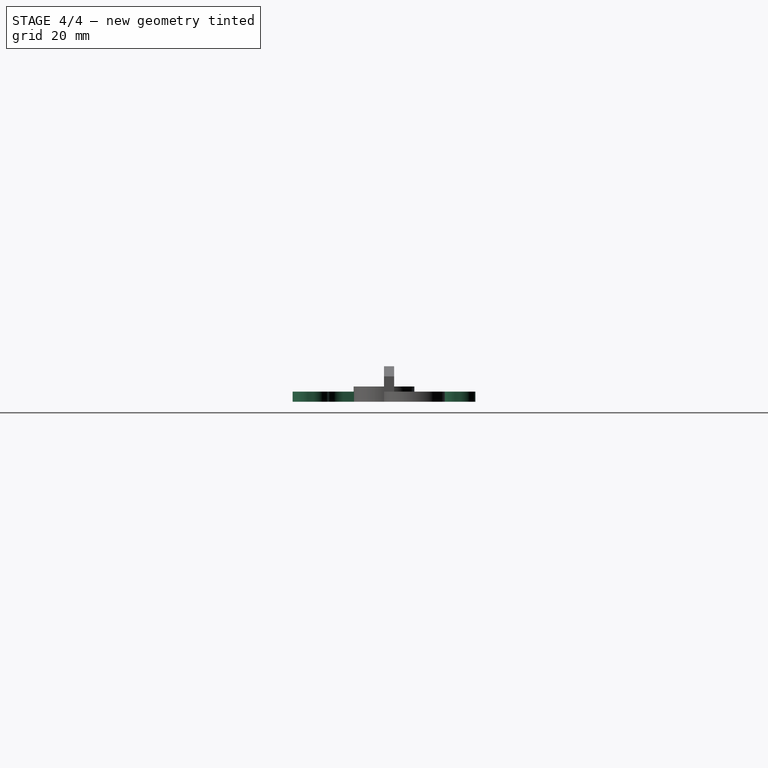
[diagram: stage 4 of 4 — right view after this stage's code; geometry added in this stage tinted green]
FEATURE [Sketcher::SketchObject] Sketch  label="LongBraceSketch"
  ArcFitTolerance = 1e-06
  AttachmentSupport = -> [XY_Plane]
  FullyConstrained = true
  MakeInternals = false
  MapMode = 5
  sketch-geometry (47):
    g0: LineSegment [constr] StartX=0 StartY=14.5 StartZ=0 EndX=0 EndY=-14.5 EndZ=0
    g1: LineSegment [constr] StartX=-4 StartY=14.5 StartZ=0 EndX=4 EndY=14.5 EndZ=0
    g2: LineSegment [constr] StartX=-4 StartY=-14.5 StartZ=0 EndX=4 EndY=-14.5 EndZ=0
    g3: Circle CenterX=-4 CenterY=14.5 CenterZ=0 NormalX=0 NormalY=0 NormalZ=1 AngleXU=0 Radius=1.7
    g4: Circle CenterX=4 CenterY=14.5 CenterZ=0 NormalX=0 NormalY=0 NormalZ=1 AngleXU=0 Radius=1.7
    g5: Circle CenterX=4 CenterY=-14.5 CenterZ=0 NormalX=0 NormalY=0 NormalZ=1 AngleXU=0 Radius=1.7
    g6: Circle CenterX=-4 CenterY=-14.5 CenterZ=0 NormalX=0 NormalY=0 NormalZ=1 AngleXU=0 Radius=1.7
    g7: LineSegment [constr] StartX=0 StartY=18 StartZ=0 EndX=0 EndY=-18 EndZ=0
    g8: LineSegment StartX=0 StartY=18 StartZ=0 EndX=-5 EndY=18 EndZ=0
    g9: LineSegment StartX=-8 StartY=15 StartZ=0 EndX=-8 EndY=14 EndZ=0
    g10: LineSegment StartX=-5 StartY=11 StartZ=0 EndX=-4 EndY=11 EndZ=0
    g11: LineSegment StartX=0 StartY=18 StartZ=0 EndX=5 EndY=18 EndZ=0
    g12: LineSegment StartX=8 StartY=15 StartZ=0 EndX=8 EndY=14 EndZ=0
    g13: LineSegment StartX=5 StartY=11 StartZ=0 EndX=4 EndY=11 EndZ=0
    g14: LineSegment StartX=0 StartY=-18 StartZ=0 EndX=-5 EndY=-18 EndZ=0
    g15: LineSegment StartX=0 StartY=-18 StartZ=0 EndX=5 EndY=-18 EndZ=0
    g16: LineSegment StartX=-8 StartY=-15 StartZ=0 EndX=-8 EndY=-14 EndZ=0
    g17: LineSegment StartX=-5 StartY=-11 StartZ=0 EndX=-4 EndY=-11 EndZ=0
    g18: LineSegment StartX=8 StartY=-15 StartZ=0 EndX=8 EndY=-14 EndZ=0
    g19: LineSegment StartX=5 StartY=-11 StartZ=0 EndX=4 EndY=-11 EndZ=0
    g20: LineSegment StartX=-1 StartY=8 StartZ=0 EndX=-1 EndY=-8 EndZ=0
    g21: LineSegment StartX=1 StartY=8 StartZ=0 EndX=1 EndY=-8 EndZ=0
    g22: ArcOfCircle CenterX=-4 CenterY=8 CenterZ=0 NormalX=0 NormalY=0 NormalZ=1 AngleXU=0 Radius=3 StartAngle=0 EndAngle=1.5708
    g23: GeomPoint [constr] X=-1 Y=11 Z=0
    g24: ArcOfCircle CenterX=4 CenterY=8 CenterZ=0 NormalX=0 NormalY=0 NormalZ=1 AngleXU=0 Radius=3 StartAngle=1.5708 EndAngle=3.14159
    g25: GeomPoint [constr] X=1 Y=11 Z=0
    g26: ArcOfCircle CenterX=-4 CenterY=-8 CenterZ=0 NormalX=0 NormalY=0 NormalZ=1 AngleXU=0 Radius=3 StartAngle=4.71239 EndAngle=6.28319
    g27: GeomPoint [constr] X=-1 Y=-11 Z=0
    g28: ArcOfCircle CenterX=4 CenterY=-8 CenterZ=0 NormalX=0 NormalY=0 NormalZ=1 AngleXU=0 Radius=3 StartAngle=3.14159 EndAngle=4.71239
    g29: GeomPoint [constr] X=1 Y=-11 Z=0
    g30: LineSegment [constr] StartX=-1 StartY=0 StartZ=0 EndX=1 EndY=0 EndZ=0
    g31: ArcOfCircle CenterX=-5 CenterY=14 CenterZ=0 NormalX=0 NormalY=0 NormalZ=1 AngleXU=0 Radius=3 StartAngle=3.14159 EndAngle=4.71239
    g32: GeomPoint [constr] X=-8 Y=11 Z=0
    g33: ArcOfCircle CenterX=-5 CenterY=15 CenterZ=0 NormalX=0 NormalY=0 NormalZ=1 AngleXU=0 Radius=3 StartAngle=1.5708 EndAngle=3.14159
    g34: GeomPoint [constr] X=-8 Y=18 Z=0
    g35: ArcOfCircle CenterX=5 CenterY=15 CenterZ=0 NormalX=0 NormalY=0 NormalZ=1 AngleXU=0 Radius=3 StartAngle=0 EndAngle=1.5708
    g36: GeomPoint [constr] X=8 Y=18 Z=0
    g37: ArcOfCircle CenterX=5 CenterY=14 CenterZ=0 NormalX=0 NormalY=0 NormalZ=1 AngleXU=0 Radius=3 StartAngle=4.71239 EndAngle=6.28319
    g38: GeomPoint [constr] X=8 Y=11 Z=0
    g39: ArcOfCircle CenterX=-5 CenterY=-14 CenterZ=0 NormalX=0 NormalY=0 NormalZ=1 AngleXU=0 Radius=3 StartAngle=1.5708 EndAngle=3.14159
    g40: GeomPoint [constr] X=-8 Y=-11 Z=0
    g41: ArcOfCircle CenterX=-5 CenterY=-15 CenterZ=0 NormalX=0 NormalY=0 NormalZ=1 AngleXU=0 Radius=3 StartAngle=3.14159 EndAngle=4.71239
    g42: GeomPoint [constr] X=-8 Y=-18 Z=0
    g43: ArcOfCircle CenterX=5 CenterY=-15 CenterZ=0 NormalX=0 NormalY=0 NormalZ=1 AngleXU=0 Radius=3 StartAngle=4.71239 EndAngle=6.28319
    g44: GeomPoint [constr] X=8 Y=-18 Z=0
    g45: ArcOfCircle CenterX=5 CenterY=-14 CenterZ=0 NormalX=0 NormalY=0 NormalZ=1 AngleXU=0 Radius=3 StartAngle=0 EndAngle=1.5708
    g46: GeomPoint [constr] X=8 Y=-11 Z=0
  constraints (111):
    c: Distance(g0) = 29
    c: Vertical(g0)
    c: Symmetric(g0,g0,g-1)
    c: Distance(g1) = 8
    c: Horizontal(g1)
    c: Symmetric(g1,g1,g0)
    c: Equal(g2,g1)
    c: Symmetric(g2,g2,g0)
    c: Horizontal(g2,g0)
    c: Diameter(g3) = 3.4
    c: Coincident(g3,g1)
    c: Coincident(g4,g1)
    c: Coincident(g5,g2)
    c: Coincident(g6,g2)
    c: Equal(g6,g5)
    c: Equal(g5,g4)
    c: Equal(g4,g3)
    c: Distance(g7) = 36
    c: Vertical(g7)
    c: Symmetric(g7,g7,g-1)
    c: Coincident(g8,g7)
    c: Horizontal(g8)
    c: Vertical(g9)
    c: DistanceX(g34,g8) = 8
    c: DistanceY(g32,g34) = 7
    c: Horizontal(g10)
    c: Coincident(g11,g7)
    c: Horizontal(g11)
    c: Vertical(g12)
    c: Horizontal(g13)
    c: Coincident(g14,g7)
    c: Horizontal(g14)
    c: Coincident(g15,g7)
    c: Horizontal(g15)
    c: Vertical(g16)
    c: Horizontal(g17)
    c: Vertical(g18)
    c: Horizontal(g19)
    c: PointOnObject(g23,g10)
    c: PointOnObject(g23,g20)
    c: Tangent(g10,g22) = 1.5708
    c: Tangent(g20,g22) = 1.5708
    c: PointOnObject(g25,g13)
    c: PointOnObject(g25,g21)
    c: Tangent(g13,g24) = -1.5708
    c: Tangent(g21,g24) = -1.5708
    c: PointOnObject(g27,g20)
    c: PointOnObject(g27,g17)
    c: Tangent(g20,g26) = 1.5708
    c: Tangent(g17,g26) = -1.5708
    c: PointOnObject(g29,g21)
    c: PointOnObject(g29,g19)
    c: Tangent(g21,g28) = -1.5708
    c: Tangent(g19,g28) = 1.5708
    c: Radius(g22) = 3
    c: Vertical(g20)
    c: Vertical(g21)
    c: Equal(g22,g24)
    c: Equal(g22,g26)
    c: Equal(g22,g28)
    c: Distance(g30) = 2
    c: Symmetric(g30,g30,g-1)
    c: Horizontal(g30,g-1)
    c: Vertical(g20,g30)
    c: Vertical(g21,g30)
    c: PointOnObject(g32,g9)
    c: PointOnObject(g32,g10)
    c: Tangent(g9,g31) = -1.5708
    c: Tangent(g10,g31) = -1.5708
    c: Equal(g31,g22)
    c: PointOnObject(g34,g8)
    c: PointOnObject(g34,g9)
    c: Tangent(g8,g33) = -1.5708
    c: Tangent(g9,g33) = -1.5708
    c: PointOnObject(g36,g11)
    c: PointOnObject(g36,g12)
    c: Tangent(g11,g35) = 1.5708
    c: Tangent(g12,g35) = 1.5708
    c: PointOnObject(g38,g12)
    c: PointOnObject(g38,g13)
    c: Tangent(g12,g37) = 1.5708
    c: Tangent(g13,g37) = 1.5708
    c: PointOnObject(g40,g17)
    c: PointOnObject(g40,g16)
    c: Tangent(g17,g39) = 1.5708
    c: Tangent(g16,g39) = 1.5708
    c: PointOnObject(g42,g14)
    c: PointOnObject(g42,g16)
    c: Tangent(g14,g41) = 1.5708
    c: Tangent(g16,g41) = 1.5708
    c: PointOnObject(g44,g15)
    c: PointOnObject(g44,g18)
    c: Tangent(g15,g43) = -1.5708
    c: Tangent(g18,g43) = -1.5708
    c: PointOnObject(g46,g19)
    c: PointOnObject(g46,g18)
    c: Tangent(g19,g45) = -1.5708
    c: Tangent(g18,g45) = -1.5708
    c: Equal(g31,g33)
    c: Equal(g33,g35)
    c: Equal(g37,g31)
    c: Equal(g11,g8)
    c: Equal(g9,g12)
    c: Equal(g22,g39)
    c: Equal(g39,g41)
    c: Equal(g41,g43)
    c: Equal(g43,g45)
    c: Equal(g14,g15)
    c: Equal(g15,g8)
    c: Equal(g16,g18)
    c: Equal(g18,g9)
FEATURE [PartDesign::Pad] Pad  label="LongBracePad"
  Direction = (0,0,1)
  Length = 2
  Length2 = 10
  Profile = -> Sketch
  ReferenceAxis = -> Sketch [N_Axis]
  Refine = true
  Suppressed = false
  Type = 0
FEATURE [PartDesign::Body] Body  label="LongBrace"
  AllowCompound = false
  Group = -> [Sketch,Pad]
  Origin = -> Origin
  Placement = pos=(0,30,0) rot=(0,0,1;0rad)
  Tip = -> Pad
FEATURE [Sketcher::SketchObject] Sketch001  label="FrontBraceSketch001"
  ArcFitTolerance = 1e-06
  AttachmentSupport = -> [XY_Plane001]
  FullyConstrained = true
  MakeInternals = false
  MapMode = 5
  sketch-geometry (11):
    g0: LineSegment [constr] StartX=-4 StartY=3.5 StartZ=0 EndX=4 EndY=3.5 EndZ=0
    g1: Circle CenterX=-4 CenterY=3.5 CenterZ=0 NormalX=0 NormalY=0 NormalZ=1 AngleXU=0 Radius=1.7
    g2: Circle CenterX=4 CenterY=3.5 CenterZ=0 NormalX=0 NormalY=0 NormalZ=1 AngleXU=0 Radius=1.7
    g3: LineSegment StartX=-8 StartY=4 StartZ=0 EndX=-8 EndY=3 EndZ=0
    g4: LineSegment StartX=8 StartY=4 StartZ=0 EndX=8 EndY=3 EndZ=0
    g5: ArcOfCircle CenterX=-5 CenterY=3 CenterZ=0 NormalX=0 NormalY=0 NormalZ=1 AngleXU=0 Radius=3 StartAngle=3.14159 EndAngle=4.71239
    g6: ArcOfCircle CenterX=-5 CenterY=4 CenterZ=0 NormalX=0 NormalY=0 NormalZ=1 AngleXU=0 Radius=3 StartAngle=1.5708 EndAngle=3.14159
    g7: ArcOfCircle CenterX=5 CenterY=4 CenterZ=0 NormalX=0 NormalY=0 NormalZ=1 AngleXU=0 Radius=3 StartAngle=0 EndAngle=1.5708
    g8: ArcOfCircle CenterX=5 CenterY=3 CenterZ=0 NormalX=0 NormalY=0 NormalZ=1 AngleXU=0 Radius=3 StartAngle=4.71239 EndAngle=6.28319
    g9: LineSegment StartX=-5 StartY=4.56e-14 StartZ=0 EndX=5 EndY=4.56e-14 EndZ=0
    g10: LineSegment StartX=-5 StartY=7 StartZ=0 EndX=5 EndY=7 EndZ=0
  constraints (30):
    c: Distance(g0) = 8
    c: Horizontal(g0)
    c: Diameter(g1) = 3.4
    c: Coincident(g1,g0)
    c: Coincident(g2,g0)
    c: Equal(g2,g1)
    c: Vertical(g3)
    c: Vertical(g4)
    c: Tangent(g3,g5) = -1.5708
    c: Tangent(g3,g6) = -1.5708
    c: Tangent(g4,g7) = 1.5708
    c: Tangent(g4,g8) = 1.5708
    c: Equal(g5,g6)
    c: Equal(g8,g5)
    c: Equal(g3,g4)
    c: Radius(g5) = 3
    c: Equal(g6,g7)
    c: DistanceY(g0,g7) = 3.5
    c: Tangent(g9,g5) = -1.5708
    c: Coincident(g9,g8)
    c: Horizontal(g9)
    c: Tangent(g10,g6) = 1.5708
    c: Coincident(g10,g7)
    c: DistanceY(g5,g6) = 7
    c: Vertical(g8,g7)
    c: DistanceX(g3,g4) = 16
    c: DistanceX(g3,g0) = 4
    c: DistanceX(g0,g7) = 1
    c: DistanceY(g-1,g0) = 3.5
    c: DistanceX(g0,g-1) = 4
FEATURE [PartDesign::Pad] Pad001  label="ShortBracePad"
  Direction = (0,0,1)
  Length = 2
  Length2 = 10
  Profile = -> Sketch001
  ReferenceAxis = -> Sketch001 [N_Axis]
  Refine = true
  Suppressed = false
  Type = 0
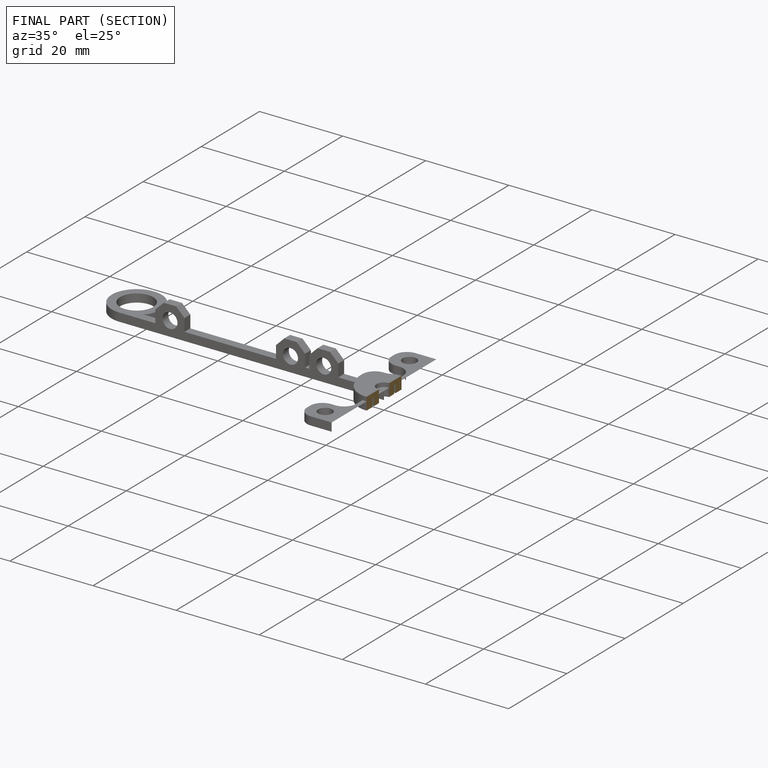
[diagram: finished part — half-section view (interior)]
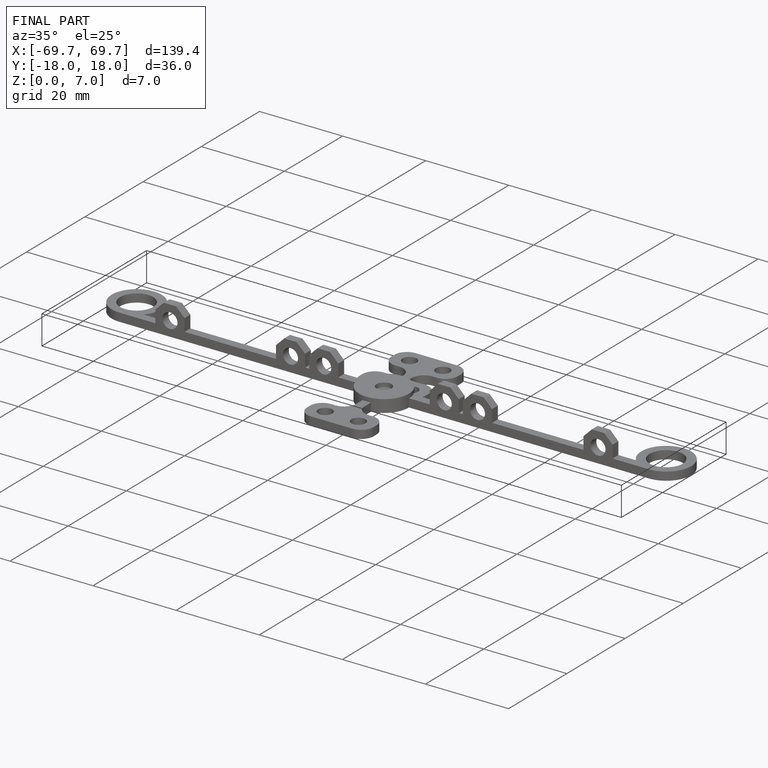
[diagram: finished part — iso view with bounding-box wireframe]
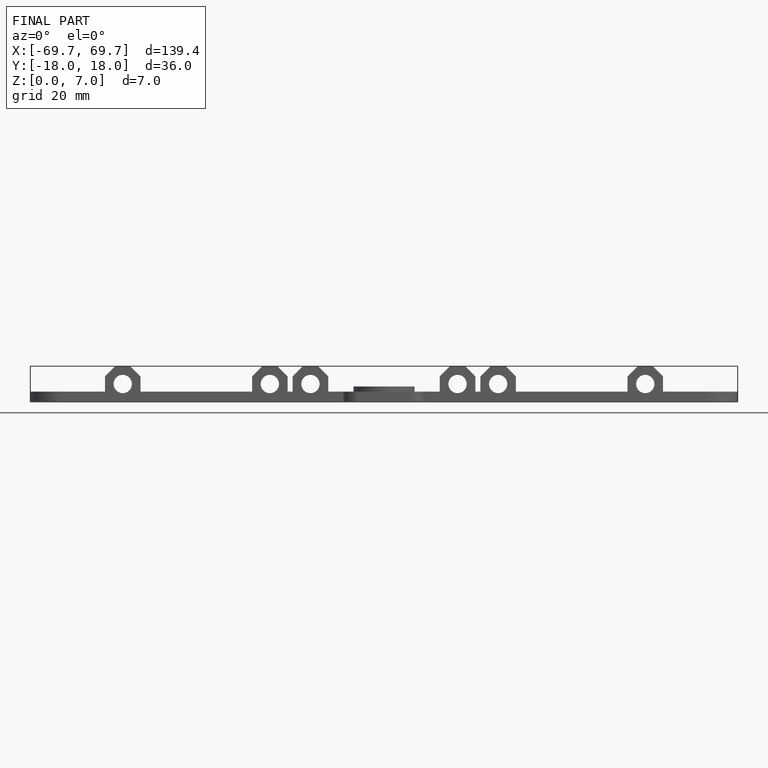
[diagram: finished part — front view with bounding-box wireframe]
